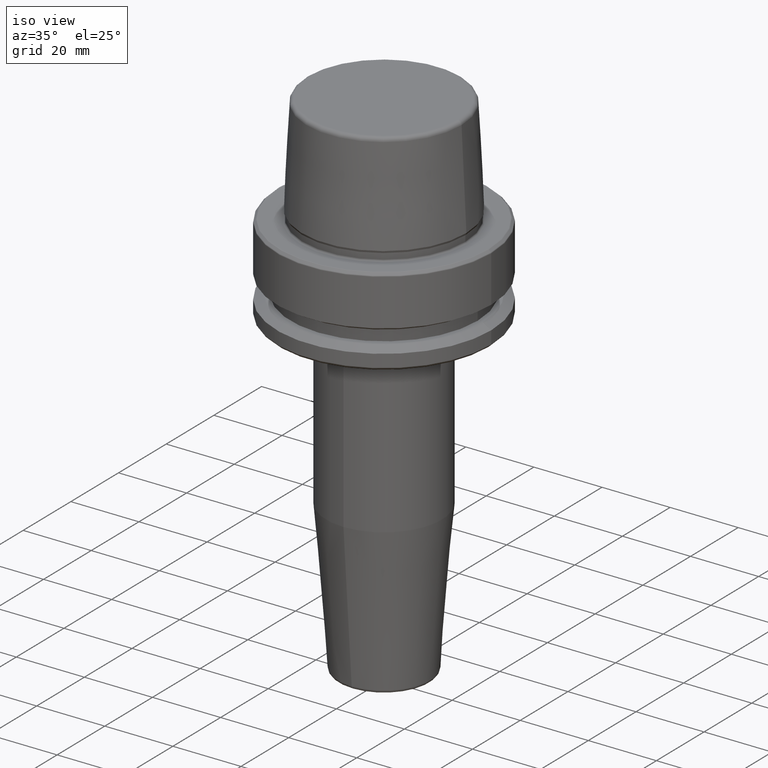
[diagram: clean part render]
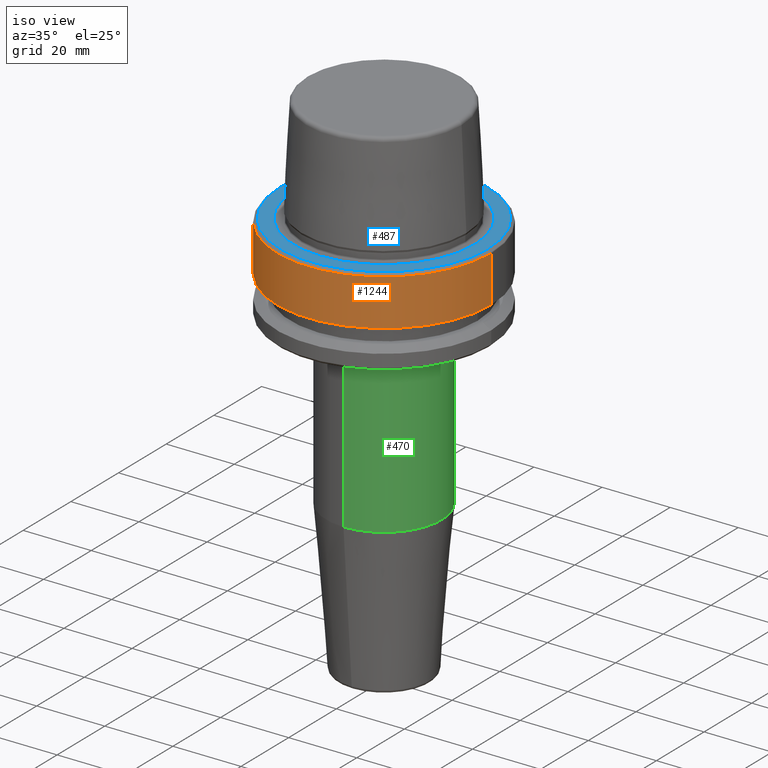
[diagram: same view with three faces highlighted in distinct colors, each labeled with its STEP entity id]
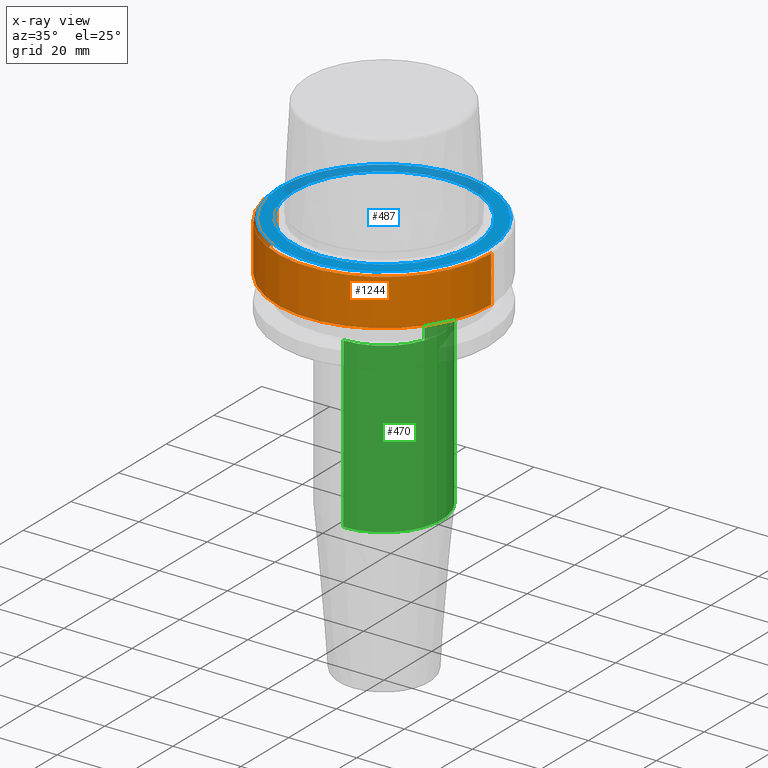
[diagram: x-ray of the same camera — body ghosted, the three highlighted faces saturated]
A machine part, iso view with three faces highlighted in distinct colors.
The next image is the same camera in x-ray (body ghosted, the three faces saturated) — at least one of them is partly hidden behind the body in this view.
Their STEP definitions:

[orange] entity #1244 — the highlighted cylindrical surface (partial cylindrical patch) has radius 31.5 mm, axis along (-0, -0, 1).
#3 = CARTESIAN_POINT ( 'NONE',  ( 31.50000000000000000, 0.0000000000000000000, -14.62250092524070100 ) ) ;
#31 = AXIS2_PLACEMENT_3D ( 'NONE', #1143, #1096, #901 ) ;
#51 = EDGE_CURVE ( 'NONE', #1231, #388, #1176, .T. ) ;
#145 = VECTOR ( 'NONE', #743, 1000.000000000000000 ) ;
#161 = CARTESIAN_POINT ( 'NONE',  ( 0.0000000000000000000, 0.0000000000000000000, -0.9656854249492363700 ) ) ;
#210 = CYLINDRICAL_SURFACE ( 'NONE', #31, 31.50000000000000000 ) ;
#246 = ORIENTED_EDGE ( 'NONE', *, *, #923, .F. ) ;
#250 = DIRECTION ( 'NONE',  ( 1.000000000000000000, 0.0000000000000000000, 0.0000000000000000000 ) ) ;
#287 = CARTESIAN_POINT ( 'NONE',  ( -31.50000000000000700, 3.857637417314163500E-015, -0.9656854249492363700 ) ) ;
#338 = EDGE_LOOP ( 'NONE', ( #246, #777, #542, #775 ) ) ;
#378 = CARTESIAN_POINT ( 'NONE',  ( 31.50000000000000700, 0.0000000000000000000, -0.9656854249492363700 ) ) ;
#388 = VERTEX_POINT ( 'NONE', #378 ) ;
#448 = CIRCLE ( 'NONE', #647, 31.50000000000000000 ) ;
#512 = DIRECTION ( 'NONE',  ( -0.0000000000000000000, -0.0000000000000000000, 1.000000000000000000 ) ) ;
#539 = AXIS2_PLACEMENT_3D ( 'NONE', #161, #837, #250 ) ;
#542 = ORIENTED_EDGE ( 'NONE', *, *, #51, .T. ) ;
#564 = VERTEX_POINT ( 'NONE', #1076 ) ;
#579 = DIRECTION ( 'NONE',  ( -0.0000000000000000000, -0.0000000000000000000, 1.000000000000000000 ) ) ;
#647 = AXIS2_PLACEMENT_3D ( 'NONE', #1160, #579, #1258 ) ;
#653 = CARTESIAN_POINT ( 'NONE',  ( -31.50000000000000000, 3.857637417314162700E-015, 78.96908074195309300 ) ) ;
#743 = DIRECTION ( 'NONE',  ( -0.0000000000000000000, -0.0000000000000000000, 1.000000000000000000 ) ) ;
#775 = ORIENTED_EDGE ( 'NONE', *, *, #890, .F. ) ;
#777 = ORIENTED_EDGE ( 'NONE', *, *, #1155, .T. ) ;
#837 = DIRECTION ( 'NONE',  ( -0.0000000000000000000, -0.0000000000000000000, 1.000000000000000000 ) ) ;
#849 = LINE ( 'NONE', #653, #145 ) ;
#890 = EDGE_CURVE ( 'NONE', #970, #388, #1148, .T. ) ;
#892 = CARTESIAN_POINT ( 'NONE',  ( 31.50000000000000000, 0.0000000000000000000, 78.96908074195309300 ) ) ;
#901 = DIRECTION ( 'NONE',  ( 1.000000000000000000, 0.0000000000000000000, 0.0000000000000000000 ) ) ;
#920 = VECTOR ( 'NONE', #512, 1000.000000000000000 ) ;
#923 = EDGE_CURVE ( 'NONE', #564, #970, #849, .T. ) ;
#932 = FACE_OUTER_BOUND ( 'NONE', #338, .T. ) ;
#970 = VERTEX_POINT ( 'NONE', #287 ) ;
#1076 = CARTESIAN_POINT ( 'NONE',  ( -31.50000000000000000, 3.857637417314162700E-015, -14.62250092524070100 ) ) ;
#1096 = DIRECTION ( 'NONE',  ( -0.0000000000000000000, -0.0000000000000000000, 1.000000000000000000 ) ) ;
#1143 = CARTESIAN_POINT ( 'NONE',  ( 0.0000000000000000000, 0.0000000000000000000, 78.96908074195309300 ) ) ;
#1148 = CIRCLE ( 'NONE', #539, 31.50000000000000700 ) ;
#1155 = EDGE_CURVE ( 'NONE', #564, #1231, #448, .T. ) ;
#1160 = CARTESIAN_POINT ( 'NONE',  ( 0.0000000000000000000, 0.0000000000000000000, -14.62250092524070100 ) ) ;
#1176 = LINE ( 'NONE', #892, #920 ) ;
#1231 = VERTEX_POINT ( 'NONE', #3 ) ;
#1244 = ADVANCED_FACE ( 'NONE', ( #932 ), #210, .T. ) ;
#1258 = DIRECTION ( 'NONE',  ( 1.000000000000000000, 0.0000000000000000000, 0.0000000000000000000 ) ) ;

[blue] entity #487 — the highlighted planar face has unit normal (0, 0, -1).
#7 = DIRECTION ( 'NONE',  ( -0.0000000000000000000, -0.0000000000000000000, 1.000000000000000000 ) ) ;
#67 = ORIENTED_EDGE ( 'NONE', *, *, #150, .F. ) ;
#69 = CARTESIAN_POINT ( 'NONE',  ( 0.0000000000000000000, 0.0000000000000000000, 0.0000000000000000000 ) ) ;
#100 = FACE_OUTER_BOUND ( 'NONE', #187, .T. ) ;
#114 = DIRECTION ( 'NONE',  ( -1.000000000000000000, 0.0000000000000000000, -0.0000000000000000000 ) ) ;
#123 = CIRCLE ( 'NONE', #588, 26.52499999999999900 ) ;
#143 = ORIENTED_EDGE ( 'NONE', *, *, #597, .F. ) ;
#150 = EDGE_CURVE ( 'NONE', #931, #934, #366, .T. ) ;
#164 = DIRECTION ( 'NONE',  ( 1.000000000000000000, 0.0000000000000000000, 0.0000000000000000000 ) ) ;
#187 = EDGE_LOOP ( 'NONE', ( #343, #839 ) ) ;
#200 = DIRECTION ( 'NONE',  ( 1.000000000000000000, 0.0000000000000000000, 0.0000000000000000000 ) ) ;
#216 = CARTESIAN_POINT ( 'NONE',  ( 0.0000000000000000000, 0.0000000000000000000, 0.0000000000000000000 ) ) ;
#238 = EDGE_CURVE ( 'NONE', #1032, #968, #1105, .T. ) ;
#286 = DIRECTION ( 'NONE',  ( -0.0000000000000000000, -0.0000000000000000000, 1.000000000000000000 ) ) ;
#312 = DIRECTION ( 'NONE',  ( 1.000000000000000000, 0.0000000000000000000, 0.0000000000000000000 ) ) ;
#343 = ORIENTED_EDGE ( 'NONE', *, *, #238, .T. ) ;
#366 = CIRCLE ( 'NONE', #685, 26.52499999999999900 ) ;
#392 = CARTESIAN_POINT ( 'NONE',  ( 30.53431457505076100, 0.0000000000000000000, 0.0000000000000000000 ) ) ;
#402 = CARTESIAN_POINT ( 'NONE',  ( 0.0000000000000000000, 26.52499999999999900, -1.111307226797642000E-015 ) ) ;
#423 = AXIS2_PLACEMENT_3D ( 'NONE', #754, #286, #200 ) ;
#449 = FACE_BOUND ( 'NONE', #651, .T. ) ;
#487 = ADVANCED_FACE ( 'NONE', ( #449, #100 ), #978, .F. ) ;
#588 = AXIS2_PLACEMENT_3D ( 'NONE', #216, #900, #312 ) ;
#595 = CARTESIAN_POINT ( 'NONE',  ( 0.0000000000000000000, 0.0000000000000000000, 0.0000000000000000000 ) ) ;
#597 = EDGE_CURVE ( 'NONE', #934, #931, #123, .T. ) ;
#608 = CIRCLE ( 'NONE', #988, 30.53431457505076100 ) ;
#651 = EDGE_LOOP ( 'NONE', ( #143, #67 ) ) ;
#685 = AXIS2_PLACEMENT_3D ( 'NONE', #69, #749, #164 ) ;
#688 = DIRECTION ( 'NONE',  ( 1.000000000000000000, 0.0000000000000000000, 0.0000000000000000000 ) ) ;
#701 = DIRECTION ( 'NONE',  ( 0.0000000000000000000, 0.0000000000000000000, -1.000000000000000000 ) ) ;
#746 = CARTESIAN_POINT ( 'NONE',  ( -26.52499999999999900, 3.248375634738354300E-015, 0.0000000000000000000 ) ) ;
#749 = DIRECTION ( 'NONE',  ( -0.0000000000000000000, -0.0000000000000000000, 1.000000000000000000 ) ) ;
#754 = CARTESIAN_POINT ( 'NONE',  ( 0.0000000000000000000, 0.0000000000000000000, 0.0000000000000000000 ) ) ;
#839 = ORIENTED_EDGE ( 'NONE', *, *, #975, .T. ) ;
#843 = CARTESIAN_POINT ( 'NONE',  ( 26.52499999999999900, 0.0000000000000000000, 0.0000000000000000000 ) ) ;
#874 = CARTESIAN_POINT ( 'NONE',  ( -30.53431457505076100, 3.756694181974138600E-015, 0.0000000000000000000 ) ) ;
#900 = DIRECTION ( 'NONE',  ( -0.0000000000000000000, -0.0000000000000000000, 1.000000000000000000 ) ) ;
#931 = VERTEX_POINT ( 'NONE', #746 ) ;
#934 = VERTEX_POINT ( 'NONE', #843 ) ;
#968 = VERTEX_POINT ( 'NONE', #874 ) ;
#975 = EDGE_CURVE ( 'NONE', #968, #1032, #608, .T. ) ;
#978 = PLANE ( 'NONE',  #1187 ) ;
#988 = AXIS2_PLACEMENT_3D ( 'NONE', #595, #7, #688 ) ;
#1032 = VERTEX_POINT ( 'NONE', #392 ) ;
#1105 = CIRCLE ( 'NONE', #423, 30.53431457505076100 ) ;
#1187 = AXIS2_PLACEMENT_3D ( 'NONE', #402, #701, #114 ) ;

[green] entity #470 — the highlighted cylindrical surface (partial cylindrical patch) has radius 17 mm, axis along (-0, 0, -1).
#1 = CARTESIAN_POINT ( 'NONE',  ( 2.081899558550499900E-015, 16.99999999999999600, -75.52828342338445100 ) ) ;
#42 = DIRECTION ( 'NONE',  ( 0.0000000000000000000, 1.000000000000000000, 0.0000000000000000000 ) ) ;
#54 = LINE ( 'NONE', #358, #787 ) ;
#108 = CARTESIAN_POINT ( 'NONE',  ( 0.0000000000000000000, 16.99999999999999300, -26.00000000000001100 ) ) ;
#118 = AXIS2_PLACEMENT_3D ( 'NONE', #228, #329, #42 ) ;
#228 = CARTESIAN_POINT ( 'NONE',  ( 0.0000000000000000000, 3.673940397442057600E-015, -120.0000000000000000 ) ) ;
#251 = ORIENTED_EDGE ( 'NONE', *, *, #1114, .T. ) ;
#311 = AXIS2_PLACEMENT_3D ( 'NONE', #1016, #438, #1115 ) ;
#329 = DIRECTION ( 'NONE',  ( -0.0000000000000000000, 3.908447231321338600E-017, -1.000000000000000000 ) ) ;
#358 = CARTESIAN_POINT ( 'NONE',  ( 0.0000000000000000000, 16.99999999999999600, -120.0000000000000000 ) ) ;
#437 = VERTEX_POINT ( 'NONE', #806 ) ;
#438 = DIRECTION ( 'NONE',  ( 0.0000000000000000000, 0.0000000000000000000, -1.000000000000000000 ) ) ;
#462 = CARTESIAN_POINT ( 'NONE',  ( 0.0000000000000000000, 1.935786822182254700E-015, -75.52828342338445100 ) ) ;
#470 = ADVANCED_FACE ( 'NONE', ( #738 ), #959, .T. ) ;
#551 = VERTEX_POINT ( 'NONE', #108 ) ;
#559 = DIRECTION ( 'NONE',  ( 0.0000000000000000000, 1.000000000000000000, 0.0000000000000000000 ) ) ;
#560 = DIRECTION ( 'NONE',  ( -0.0000000000000000000, 3.908447231321338600E-017, -1.000000000000000000 ) ) ;
#689 = ORIENTED_EDGE ( 'NONE', *, *, #1089, .T. ) ;
#738 = FACE_OUTER_BOUND ( 'NONE', #869, .T. ) ;
#787 = VECTOR ( 'NONE', #560, 1000.000000000000000 ) ;
#795 = EDGE_CURVE ( 'NONE', #1193, #1209, #1236, .T. ) ;
#806 = CARTESIAN_POINT ( 'NONE',  ( 2.081899558550499900E-015, -16.99999999999999300, -26.00000000000001100 ) ) ;
#869 = EDGE_LOOP ( 'NONE', ( #689, #251, #1174, #1165 ) ) ;
#918 = DIRECTION ( 'NONE',  ( -0.0000000000000000000, 3.908447231321338600E-017, -1.000000000000000000 ) ) ;
#955 = EDGE_CURVE ( 'NONE', #551, #1193, #54, .T. ) ;
#959 = CYLINDRICAL_SURFACE ( 'NONE', #118, 16.99999999999999300 ) ;
#965 = CARTESIAN_POINT ( 'NONE',  ( 0.0000000000000000000, -16.99999999999998900, -75.52828342338445100 ) ) ;
#986 = VECTOR ( 'NONE', #918, 1000.000000000000000 ) ;
#1016 = CARTESIAN_POINT ( 'NONE',  ( 0.0000000000000000000, 0.0000000000000000000, -26.00000000000001100 ) ) ;
#1022 = LINE ( 'NONE', #1207, #986 ) ;
#1055 = CIRCLE ( 'NONE', #311, 16.99999999999999300 ) ;
#1089 = EDGE_CURVE ( 'NONE', #551, #437, #1055, .T. ) ;
#1114 = EDGE_CURVE ( 'NONE', #437, #1209, #1022, .T. ) ;
#1115 = DIRECTION ( 'NONE',  ( 1.000000000000000000, 0.0000000000000000000, 0.0000000000000000000 ) ) ;
#1141 = DIRECTION ( 'NONE',  ( -0.0000000000000000000, 3.908447231321338600E-017, -1.000000000000000000 ) ) ;
#1151 = AXIS2_PLACEMENT_3D ( 'NONE', #462, #1141, #559 ) ;
#1165 = ORIENTED_EDGE ( 'NONE', *, *, #955, .F. ) ;
#1174 = ORIENTED_EDGE ( 'NONE', *, *, #795, .F. ) ;
#1193 = VERTEX_POINT ( 'NONE', #1 ) ;
#1207 = CARTESIAN_POINT ( 'NONE',  ( 2.081899558550499900E-015, -16.99999999999998900, -120.0000000000000000 ) ) ;
#1209 = VERTEX_POINT ( 'NONE', #965 ) ;
#1236 = CIRCLE ( 'NONE', #1151, 16.99999999999999600 ) ;